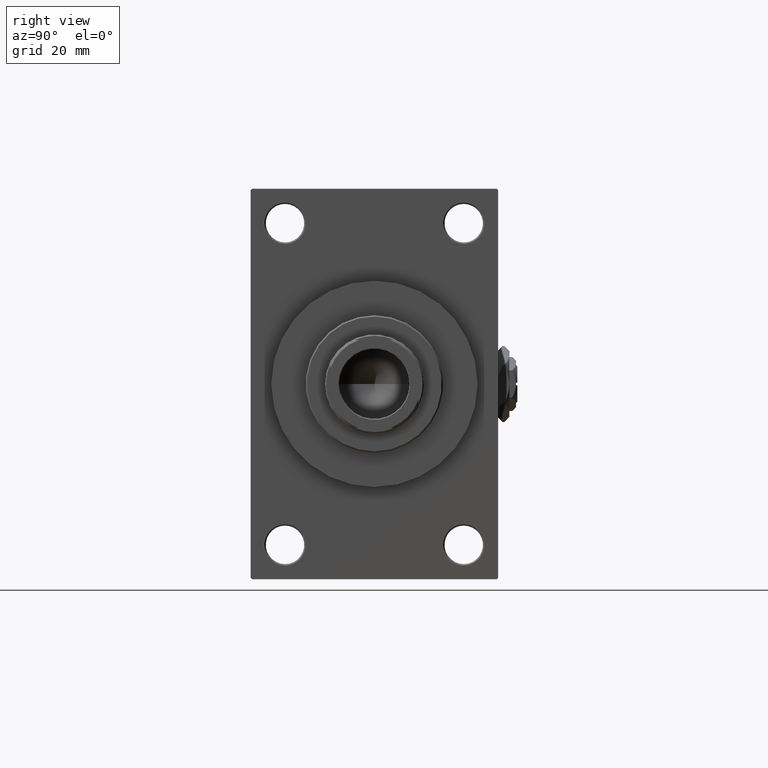
[diagram: clean part render]
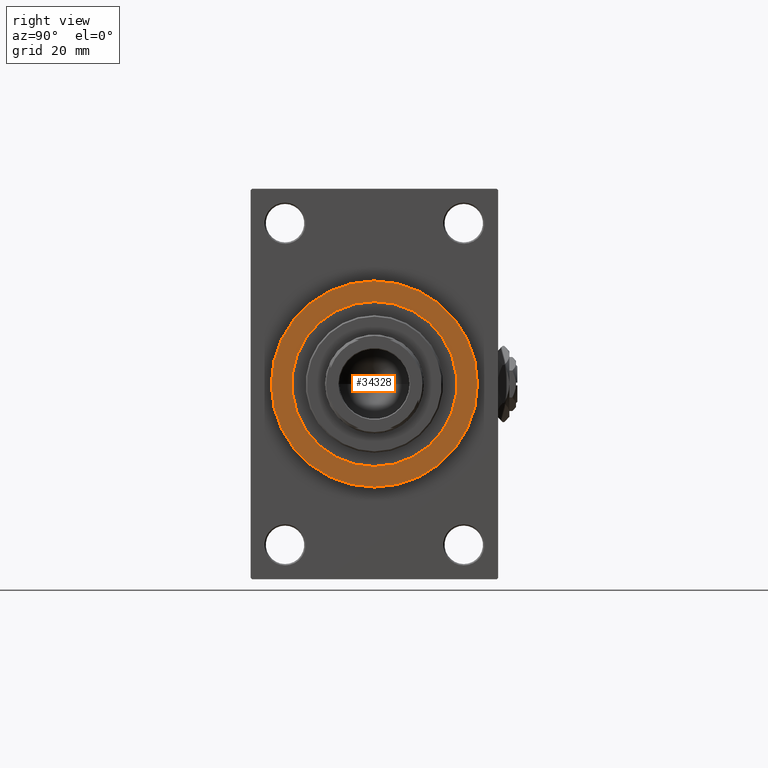
[diagram: same view with one face highlighted and labeled with its STEP entity id]
A machine part, right view. The second image highlights one B-rep face of the part: STEP entity #34328.
In plain terms, the highlighted planar face has unit normal (1, 0, 0).
Its self-contained STEP definition (entity closure, byte-faithful):
#1546 = CIRCLE ( 'NONE', #25244, 37.50000000000000711 ) ;
#1689 = EDGE_CURVE ( 'NONE', #18971, #7940, #13452, .T. ) ;
#2244 = VERTEX_POINT ( 'NONE', #48253 ) ;
#3060 = DIRECTION ( 'NONE',  ( 1.000000000000000000, 0.000000000000000000, 0.000000000000000000 ) ) ;
#3664 = AXIS2_PLACEMENT_3D ( 'NONE', #39296, #16992, #28130 ) ;
#4814 = CARTESIAN_POINT ( 'NONE',  ( 156.0000000000000284, 4.592425496802575156E-15, -37.50000000000000711 ) ) ;
#7892 = CARTESIAN_POINT ( 'NONE',  ( 156.0000000000000284, 0.000000000000000000, 0.000000000000000000 ) ) ;
#7940 = VERTEX_POINT ( 'NONE', #4814 ) ;
#7967 = CARTESIAN_POINT ( 'NONE',  ( 156.0000000000000284, 3.673940397442059178E-15, 30.00000000000000000 ) ) ;
#8019 = FACE_OUTER_BOUND ( 'NONE', #17716, .T. ) ;
#11224 = CARTESIAN_POINT ( 'NONE',  ( 156.0000000000000284, 0.000000000000000000, 0.000000000000000000 ) ) ;
#11566 = CIRCLE ( 'NONE', #3664, 30.00000000000000000 ) ;
#11788 = EDGE_CURVE ( 'NONE', #7940, #18971, #1546, .T. ) ;
#13403 = AXIS2_PLACEMENT_3D ( 'NONE', #25499, #37135, #17829 ) ;
#13452 = CIRCLE ( 'NONE', #25320, 37.50000000000000711 ) ;
#15933 = DIRECTION ( 'NONE',  ( 1.000000000000000000, 0.000000000000000000, 0.000000000000000000 ) ) ;
#16352 = EDGE_LOOP ( 'NONE', ( #18771, #32919 ) ) ;
#16992 = DIRECTION ( 'NONE',  ( 1.000000000000000000, 0.000000000000000000, 0.000000000000000000 ) ) ;
#17716 = EDGE_LOOP ( 'NONE', ( #31358, #29787 ) ) ;
#17829 = DIRECTION ( 'NONE',  ( 0.000000000000000000, 0.000000000000000000, -1.000000000000000000 ) ) ;
#18656 = DIRECTION ( 'NONE',  ( 0.000000000000000000, 0.000000000000000000, -1.000000000000000000 ) ) ;
#18771 = ORIENTED_EDGE ( 'NONE', *, *, #32995, .F. ) ;
#18971 = VERTEX_POINT ( 'NONE', #38039 ) ;
#19029 = DIRECTION ( 'NONE',  ( 0.000000000000000000, 0.000000000000000000, -1.000000000000000000 ) ) ;
#19890 = CARTESIAN_POINT ( 'NONE',  ( 156.0000000000000284, 0.000000000000000000, 0.000000000000000000 ) ) ;
#22618 = FACE_BOUND ( 'NONE', #16352, .T. ) ;
#23232 = DIRECTION ( 'NONE',  ( 1.000000000000000000, 0.000000000000000000, 0.000000000000000000 ) ) ;
#25244 = AXIS2_PLACEMENT_3D ( 'NONE', #7892, #23232, #19029 ) ;
#25320 = AXIS2_PLACEMENT_3D ( 'NONE', #11224, #3060, #18656 ) ;
#25499 = CARTESIAN_POINT ( 'NONE',  ( 156.0000000000000284, 0.000000000000000000, 0.000000000000000000 ) ) ;
#26570 = DIRECTION ( 'NONE',  ( 0.000000000000000000, 0.000000000000000000, -1.000000000000000000 ) ) ;
#28130 = DIRECTION ( 'NONE',  ( 0.000000000000000000, 0.000000000000000000, -1.000000000000000000 ) ) ;
#29787 = ORIENTED_EDGE ( 'NONE', *, *, #11788, .T. ) ;
#31358 = ORIENTED_EDGE ( 'NONE', *, *, #1689, .T. ) ;
#32919 = ORIENTED_EDGE ( 'NONE', *, *, #44818, .F. ) ;
#32995 = EDGE_CURVE ( 'NONE', #2244, #35785, #11566, .T. ) ;
#34328 = ADVANCED_FACE ( 'NONE', ( #22618, #8019 ), #45403, .T. ) ;
#35785 = VERTEX_POINT ( 'NONE', #7967 ) ;
#37135 = DIRECTION ( 'NONE',  ( 1.000000000000000000, 0.000000000000000000, 0.000000000000000000 ) ) ;
#38039 = CARTESIAN_POINT ( 'NONE',  ( 156.0000000000000284, 0.000000000000000000, 37.50000000000000711 ) ) ;
#39296 = CARTESIAN_POINT ( 'NONE',  ( 156.0000000000000284, 0.000000000000000000, 0.000000000000000000 ) ) ;
#42523 = AXIS2_PLACEMENT_3D ( 'NONE', #19890, #15933, #26570 ) ;
#44818 = EDGE_CURVE ( 'NONE', #35785, #2244, #45827, .T. ) ;
#45403 = PLANE ( 'NONE',  #42523 ) ;
#45827 = CIRCLE ( 'NONE', #13403, 30.00000000000000000 ) ;
#48253 = CARTESIAN_POINT ( 'NONE',  ( 156.0000000000000284, 0.000000000000000000, -30.00000000000000000 ) ) ;